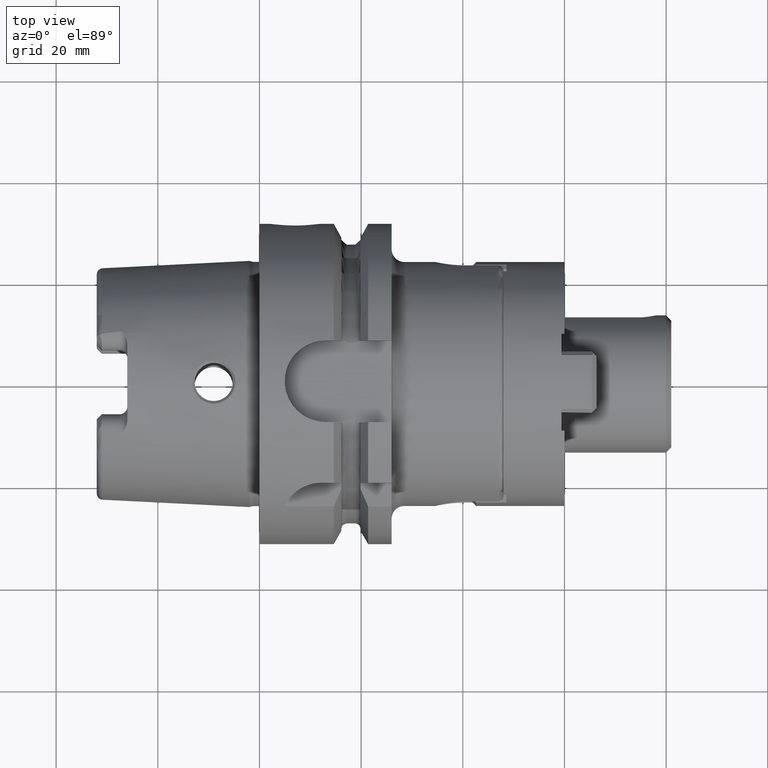
[diagram: clean part render]
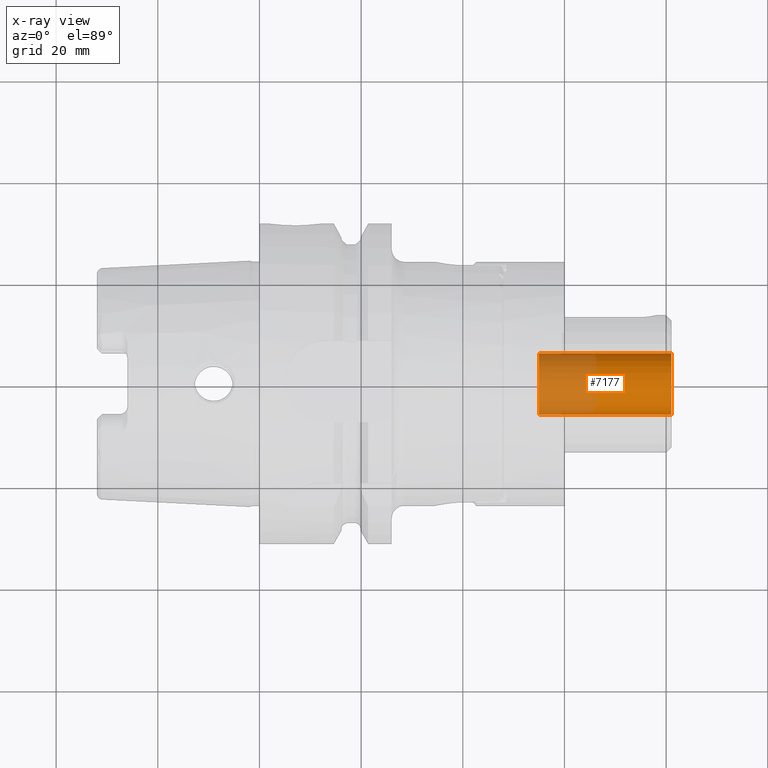
[diagram: x-ray — body ghosted, one internal face saturated and labeled with its STEP entity id]
A machine part, top view, then the same camera in x-ray: the body is ghosted and one INTERNAL B-rep face — a face not visible from any outside direction — is saturated and labeled: STEP entity #7177.
In plain terms, the highlighted cylindrical surface (edge-blend (fillet) strip) has radius 6 mm, axis along (1, 0, 0).
Its self-contained STEP definition (entity closure, byte-faithful):
#7103=CARTESIAN_POINT('',(8.1E1,0.E0,0.E0));
#7104=DIRECTION('',(-1.E0,0.E0,0.E0));
#7105=DIRECTION('',(0.E0,-1.E0,0.E0));
#7106=AXIS2_PLACEMENT_3D('',#7103,#7104,#7105);
#7108=DIRECTION('',(-1.E0,0.E0,0.E0));
#7109=VECTOR('',#7108,2.6E1);
#7110=CARTESIAN_POINT('',(8.1E1,6.E0,0.E0));
#7111=LINE('',#7110,#7109);
#7112=DIRECTION('',(-1.E0,0.E0,0.E0));
#7113=VECTOR('',#7112,2.6E1);
#7114=CARTESIAN_POINT('',(8.1E1,-6.E0,0.E0));
#7115=LINE('',#7114,#7113);
#7121=CARTESIAN_POINT('',(5.5E1,0.E0,0.E0));
#7122=DIRECTION('',(-1.E0,0.E0,0.E0));
#7123=DIRECTION('',(0.E0,-1.E0,0.E0));
#7124=AXIS2_PLACEMENT_3D('',#7121,#7122,#7123);
#7136=CARTESIAN_POINT('',(5.5E1,-6.E0,0.E0));
#7137=CARTESIAN_POINT('',(5.5E1,6.E0,0.E0));
#7138=VERTEX_POINT('',#7136);
#7139=VERTEX_POINT('',#7137);
#7140=CARTESIAN_POINT('',(8.1E1,-6.E0,0.E0));
#7141=CARTESIAN_POINT('',(8.1E1,6.E0,0.E0));
#7142=VERTEX_POINT('',#7140);
#7143=VERTEX_POINT('',#7141);
#7164=CARTESIAN_POINT('',(2.580739138511E1,0.E0,0.E0));
#7165=DIRECTION('',(1.E0,0.E0,0.E0));
#7166=DIRECTION('',(0.E0,-1.E0,0.E0));
#7167=AXIS2_PLACEMENT_3D('',#7164,#7165,#7166);
#7168=CYLINDRICAL_SURFACE('',#7167,6.E0);
#7170=ORIENTED_EDGE('',*,*,#7169,.T.);
#7171=ORIENTED_EDGE('',*,*,#7159,.T.);
#7173=ORIENTED_EDGE('',*,*,#7172,.F.);
#7174=ORIENTED_EDGE('',*,*,#7155,.F.);
#7175=EDGE_LOOP('',(#7170,#7171,#7173,#7174));
#7176=FACE_OUTER_BOUND('',#7175,.F.);
#7177=ADVANCED_FACE('',(#7176),#7168,.F.);
#7107=CIRCLE('',#7106,6.E0);
#7125=CIRCLE('',#7124,6.E0);
#7155=EDGE_CURVE('',#7142,#7138,#7115,.T.);
#7159=EDGE_CURVE('',#7143,#7139,#7111,.T.);
#7169=EDGE_CURVE('',#7142,#7143,#7107,.T.);
#7172=EDGE_CURVE('',#7138,#7139,#7125,.T.);